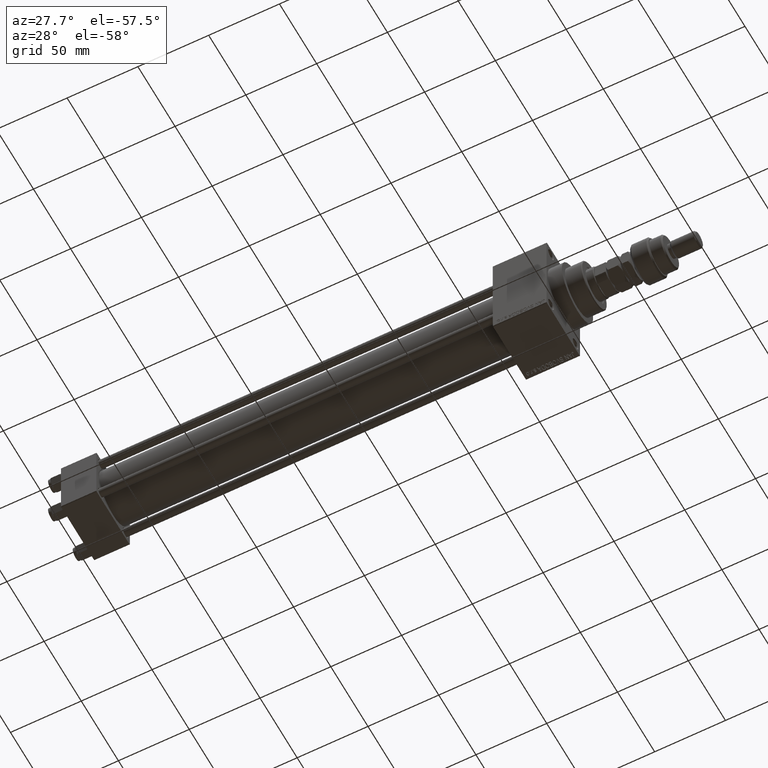
[diagram: clean part render]
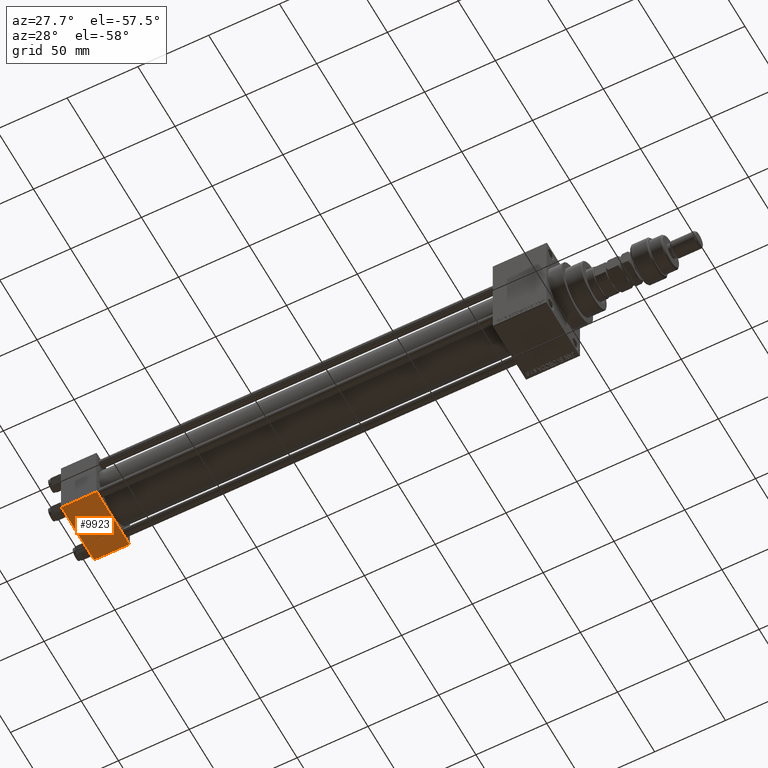
[diagram: same view with one face highlighted and labeled with its STEP entity id]
A machine part, auxiliary view. The second image highlights one B-rep face of the part: STEP entity #9923.
In plain terms, the highlighted planar face has unit normal (0, 0, -1).
Its self-contained STEP definition (entity closure, byte-faithful):
#1521 = DIRECTION ( 'NONE',  ( 0.000000000000000000, -1.000000000000000000, -2.312964634635742957E-16 ) ) ;
#1970 = DIRECTION ( 'NONE',  ( 0.000000000000000000, 1.000000000000000000, 2.312964634635742957E-16 ) ) ;
#2874 = ORIENTED_EDGE ( 'NONE', *, *, #17438, .T. ) ;
#2966 = ORIENTED_EDGE ( 'NONE', *, *, #11410, .T. ) ;
#3260 = CARTESIAN_POINT ( 'NONE',  ( 0.000000000000000000, 21.99999999999999289, -22.49999999999999645 ) ) ;
#4484 = VECTOR ( 'NONE', #1521, 1000.000000000000000 ) ;
#6212 = CARTESIAN_POINT ( 'NONE',  ( 25.00000000000000000, 21.99999999999999289, -22.49999999999999645 ) ) ;
#6697 = CARTESIAN_POINT ( 'NONE',  ( 25.00000000000000000, 22.50000000000000000, -22.49999999999999645 ) ) ;
#8642 = CARTESIAN_POINT ( 'NONE',  ( 0.000000000000000000, 22.50000000000000000, -22.49999999999999645 ) ) ;
#8792 = VECTOR ( 'NONE', #9642, 1000.000000000000000 ) ;
#9642 = DIRECTION ( 'NONE',  ( 0.000000000000000000, -1.000000000000000000, -2.312964634635742957E-16 ) ) ;
#9923 = ADVANCED_FACE ( 'NONE', ( #46341 ), #41909, .T. ) ;
#11410 = EDGE_CURVE ( 'NONE', #30166, #21267, #33463, .T. ) ;
#11773 = DIRECTION ( 'NONE',  ( -1.000000000000000000, 0.000000000000000000, 0.000000000000000000 ) ) ;
#12525 = EDGE_CURVE ( 'NONE', #24020, #30166, #42196, .T. ) ;
#13326 = LINE ( 'NONE', #6212, #43353 ) ;
#13843 = CARTESIAN_POINT ( 'NONE',  ( 25.00000000000000000, 22.50000000000000000, -22.49999999999999645 ) ) ;
#15721 = CARTESIAN_POINT ( 'NONE',  ( 0.000000000000000000, -21.99999999999998579, -22.50000000000000711 ) ) ;
#17438 = EDGE_CURVE ( 'NONE', #43063, #24020, #13326, .T. ) ;
#17535 = DIRECTION ( 'NONE',  ( 1.000000000000000000, 0.000000000000000000, 0.000000000000000000 ) ) ;
#20985 = LINE ( 'NONE', #8642, #4484 ) ;
#21267 = VERTEX_POINT ( 'NONE', #30822 ) ;
#23518 = ORIENTED_EDGE ( 'NONE', *, *, #51595, .F. ) ;
#24020 = VERTEX_POINT ( 'NONE', #48823 ) ;
#24693 = VECTOR ( 'NONE', #11773, 1000.000000000000000 ) ;
#26006 = CARTESIAN_POINT ( 'NONE',  ( 25.00000000000000000, -21.99999999999997158, -22.50000000000000711 ) ) ;
#29819 = DIRECTION ( 'NONE',  ( 0.000000000000000000, 2.312964634635742957E-16, -1.000000000000000000 ) ) ;
#30166 = VERTEX_POINT ( 'NONE', #26006 ) ;
#30822 = CARTESIAN_POINT ( 'NONE',  ( 0.000000000000000000, -21.99999999999997158, -22.50000000000000711 ) ) ;
#31370 = EDGE_LOOP ( 'NONE', ( #23518, #2874, #38390, #2966 ) ) ;
#33463 = LINE ( 'NONE', #15721, #24693 ) ;
#38390 = ORIENTED_EDGE ( 'NONE', *, *, #12525, .T. ) ;
#41909 = PLANE ( 'NONE',  #46518 ) ;
#42196 = LINE ( 'NONE', #13843, #8792 ) ;
#43063 = VERTEX_POINT ( 'NONE', #3260 ) ;
#43353 = VECTOR ( 'NONE', #17535, 1000.000000000000000 ) ;
#46341 = FACE_OUTER_BOUND ( 'NONE', #31370, .T. ) ;
#46518 = AXIS2_PLACEMENT_3D ( 'NONE', #6697, #29819, #1970 ) ;
#48823 = CARTESIAN_POINT ( 'NONE',  ( 25.00000000000000000, 21.99999999999999289, -22.49999999999999645 ) ) ;
#51595 = EDGE_CURVE ( 'NONE', #43063, #21267, #20985, .T. ) ;